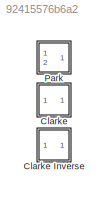
MODEL slx_92415576b6a2
KIND library
CONFIG AbsTol = auto
CONFIG FixedStep = auto
CONFIG MaxStep = auto
CONFIG MinStep = auto
CONFIG RelTol = 1e-3
CONFIG SampleTimeConstraint = Unconstrained
CONFIG Solver = VariableStepAuto
CONFIG SolverMode = Auto
CONFIG SolverName = VariableStepAuto
CONFIG StartTime = 0.0
CONFIG StopTime = 10.0
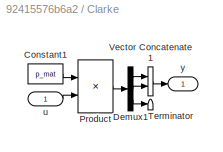
BLOCK [SubSystem] Clarke
  Ports = [1, 1]
  RequestExecContextInheritance = off
  ShowPortLabels = none
  Variant = off
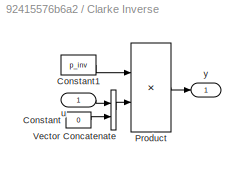
BLOCK [SubSystem] Clarke Inverse
  Ports = [1, 1]
  RequestExecContextInheritance = off
  Variant = off
BLOCK [Constant] Clarke Inverse/Constant
  Value = 0
  VectorParams1D = off
BLOCK [Constant] Clarke Inverse/Constant1
  Value = p_inv
  VectorParams1D = off
BLOCK [Product] Clarke Inverse/Product
  InputSameDT = off
  Multiplication = Matrix(*)
  OutDataTypeStr = Inherit: Inherit via internal rule
  Ports = [2, 1]
  RndMeth = Floor
  SaturateOnIntegerOverflow = off
BLOCK [Concatenate] Clarke Inverse/Vector Concatenate
  Mode = Multidimensional array
  Ports = [2, 1]
BLOCK [Inport] Clarke Inverse/u
  IconDisplay = Port number
BLOCK [Outport] Clarke Inverse/y
  IconDisplay = Port number
BLOCK [Constant] Clarke/Constant1
  Value = p_mat
  VectorParams1D = off
BLOCK [Demux] Clarke/Demux1
  DisplayOption = bar
  Outputs = 3
  Ports = [1, 3]
BLOCK [Product] Clarke/Product
  InputSameDT = off
  Multiplication = Matrix(*)
  OutDataTypeStr = Inherit: Inherit via internal rule
  Ports = [2, 1]
  RndMeth = Floor
  SaturateOnIntegerOverflow = off
BLOCK [Terminator] Clarke/Terminator
BLOCK [Concatenate] Clarke/Vector Concatenate1
  Mode = Multidimensional array
  Ports = [2, 1]
BLOCK [Inport] Clarke/u
  IconDisplay = Port number
BLOCK [Outport] Clarke/y
  IconDisplay = Port number
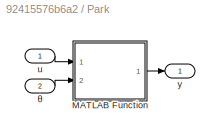
BLOCK [SubSystem] Park
  Ports = [2, 1]
  RequestExecContextInheritance = off
  ShowPortLabels = none
  Variant = off
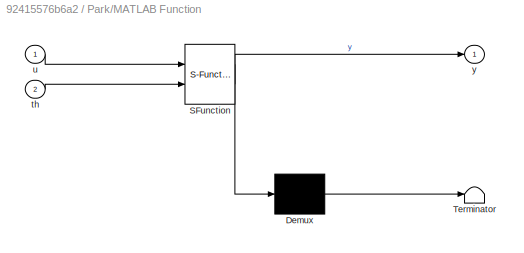
BLOCK [SubSystem] Park/MATLAB Function
  ErrorFcn = Stateflow.Translate.translate
  PermitHierarchicalResolution = ExplicitOnly
  Ports = [2, 1]
  RequestExecContextInheritance = off
  SFBlockType = MATLAB Function
  TreatAsAtomicUnit = on
  Variant = off
BLOCK [Demux] Park/MATLAB Function/ Demux 
  Outputs = 1
  Ports = [1, 1]
BLOCK [S-Function] Park/MATLAB Function/ SFunction 
  EnableBusSupport = on
  FunctionName = sf_sfun
  Parameters = inverse
  PortCounts = [2 2]
  Ports = [2, 2]
  SFunctionDeploymentMode = off
  Tag = Stateflow S-Function transformations_lib 1
BLOCK [Terminator] Park/MATLAB Function/ Terminator 
BLOCK [Inport] Park/MATLAB Function/th
  IconDisplay = Port number
  Port = 2
BLOCK [Inport] Park/MATLAB Function/u
  IconDisplay = Port number
BLOCK [Outport] Park/MATLAB Function/y
  IconDisplay = Port number
BLOCK [Inport] Park/u
  IconDisplay = Port number
BLOCK [Outport] Park/y
  IconDisplay = Port number
BLOCK [Inport] Park/θ
  IconDisplay = Port number
  Port = 2
LINE Clarke Inverse/Constant1:1 -> Clarke Inverse/Product:1
LINE Clarke Inverse/Constant:1 -> Clarke Inverse/Vector Concatenate:2
LINE Clarke Inverse/Product:1 -> Clarke Inverse/y:1
LINE Clarke Inverse/Vector Concatenate:1 -> Clarke Inverse/Product:2
LINE Clarke Inverse/u:1 -> Clarke Inverse/Vector Concatenate:1
LINE Clarke/Constant1:1 -> Clarke/Product:1
LINE Clarke/Demux1:1 -> Clarke/Vector Concatenate1:1
LINE Clarke/Demux1:2 -> Clarke/Vector Concatenate1:2
LINE Clarke/Demux1:3 -> Clarke/Terminator:1
LINE Clarke/Product:1 -> Clarke/Demux1:1
LINE Clarke/Vector Concatenate1:1 -> Clarke/y:1
LINE Clarke/u:1 -> Clarke/Product:2
LINE Park/MATLAB Function:1 -> Park/y:1
LINE Park/u:1 -> Park/MATLAB Function:1
LINE Park/θ:1 -> Park/MATLAB Function:2
CHART Park/MATLAB Function states=1 transitions=1
  STATE_LABEL 'eML_blk_kernel()'
  STATE_LABEL 'SCRIPT:\nfunction y = t_mult(u, th, inverse)\n\nif inverse > 0\n    th = -th; \nend\n\nT = [\tcos(th)\t-sin(th)\t;\n        sin(th)\t cos(th)\t];\n\n\ny = T*u;'
